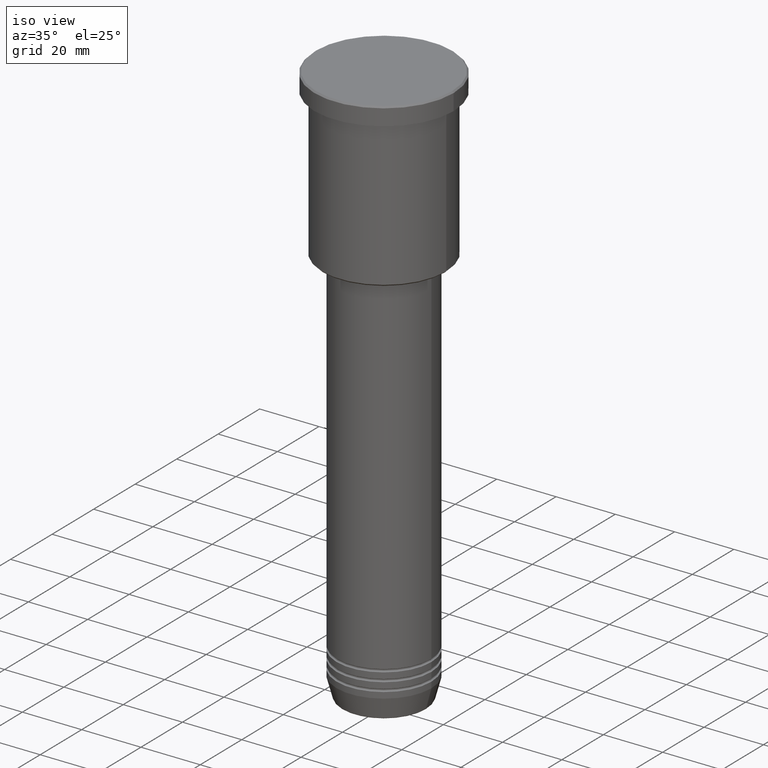
[diagram: clean part render]
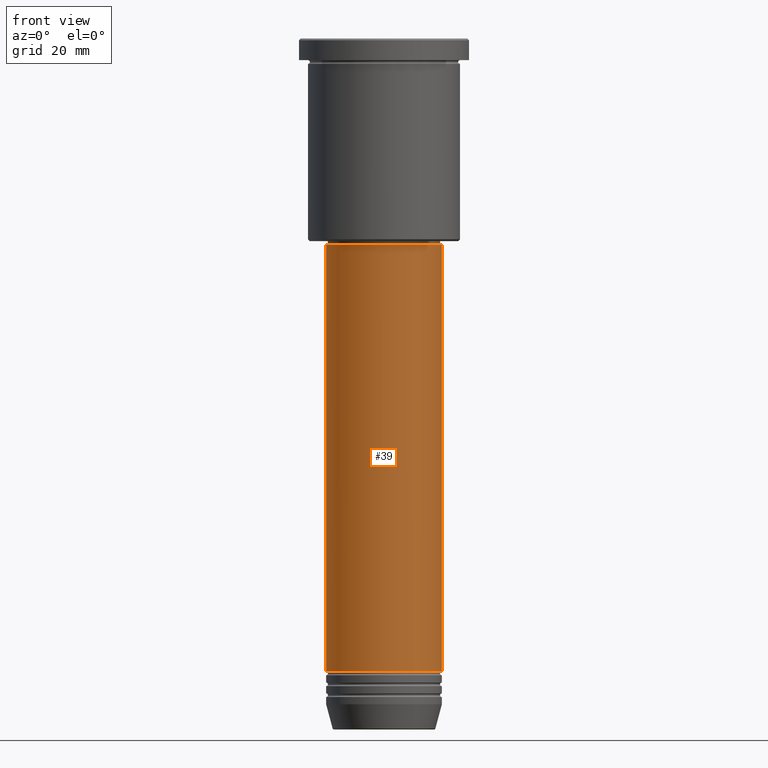
[diagram: tour spotlight — one face highlighted and labeled with its STEP entity id]
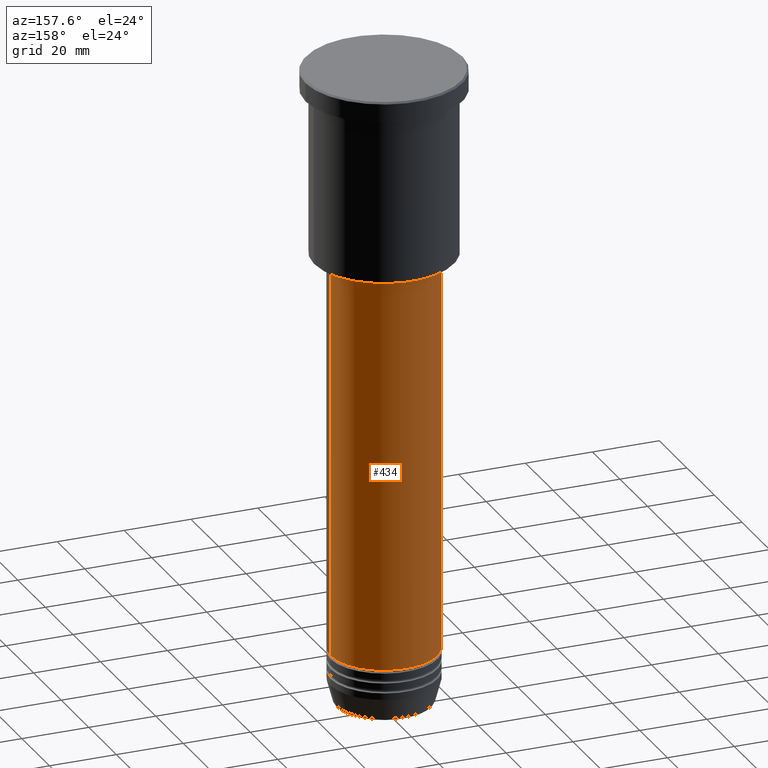
[diagram: tour spotlight — one face highlighted and labeled with its STEP entity id]
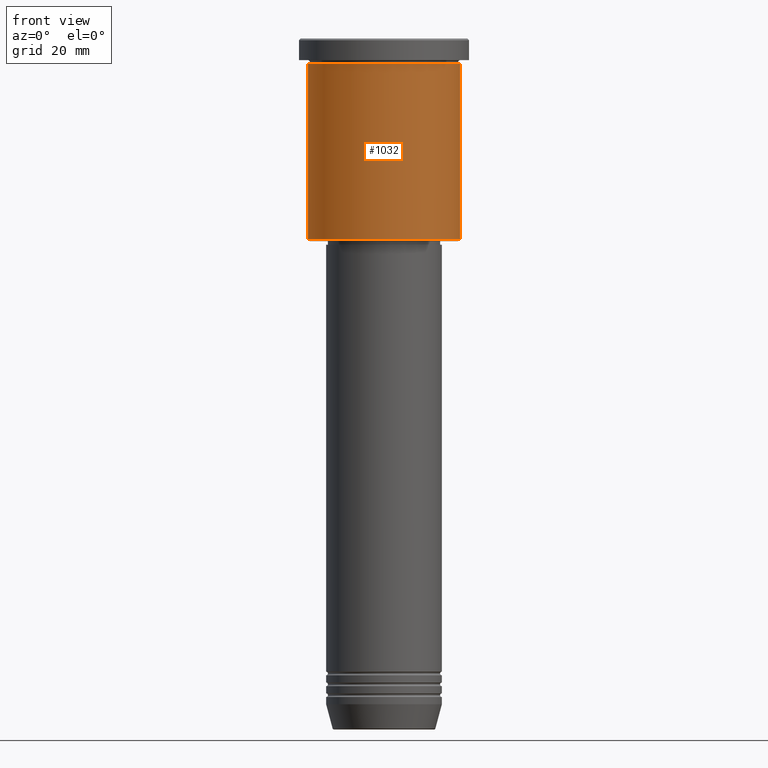
[diagram: tour spotlight — one face highlighted and labeled with its STEP entity id]
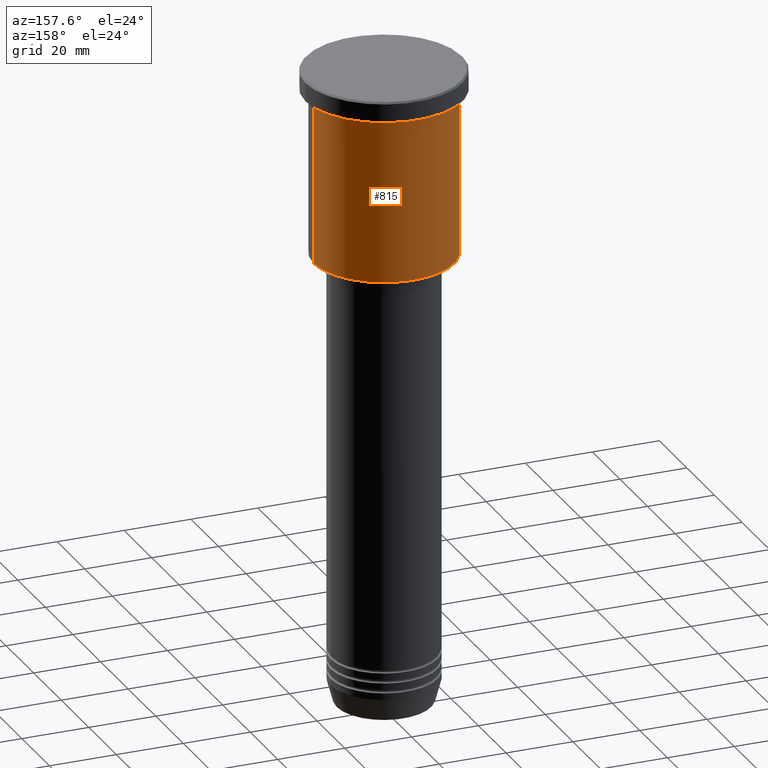
[diagram: tour spotlight — one face highlighted and labeled with its STEP entity id]
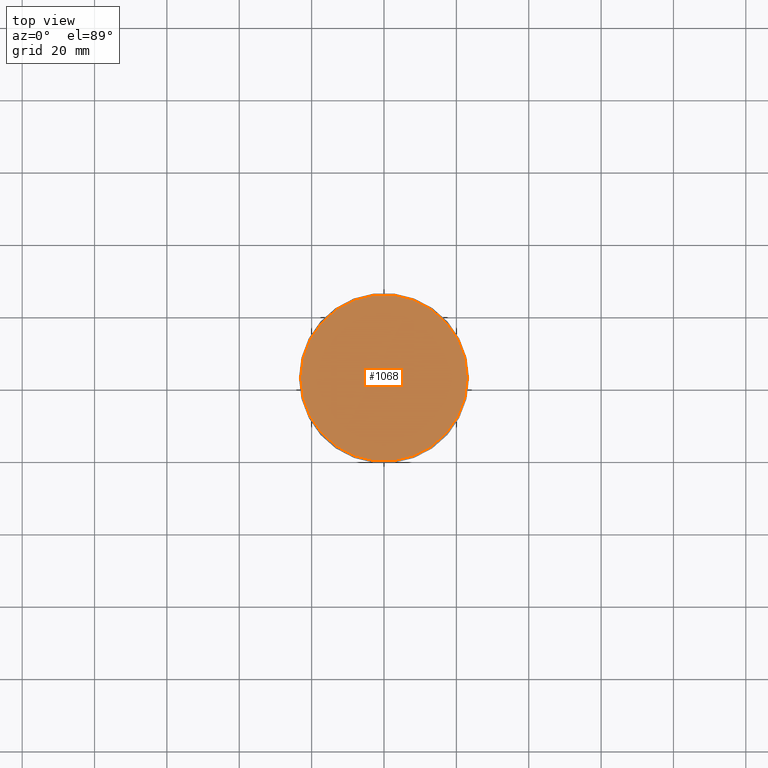
[diagram: tour spotlight — one face highlighted and labeled with its STEP entity id]
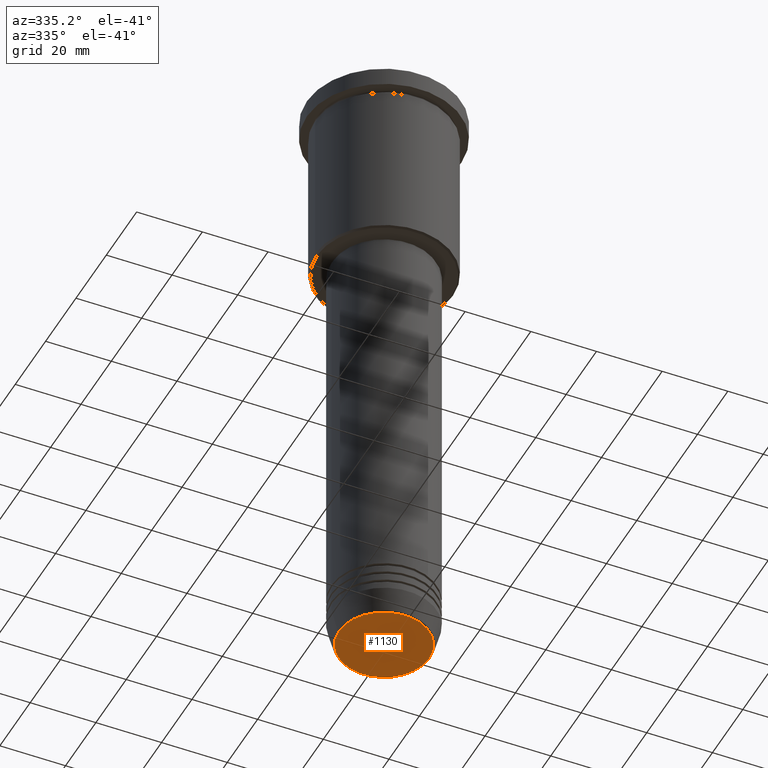
[diagram: tour spotlight — one face highlighted and labeled with its STEP entity id]
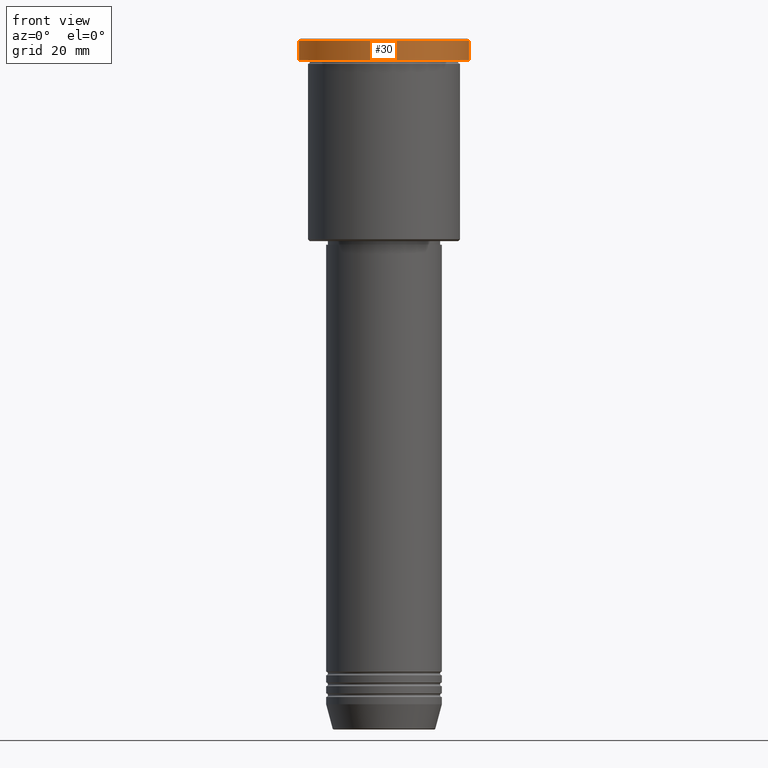
[diagram: tour spotlight — one face highlighted and labeled with its STEP entity id]
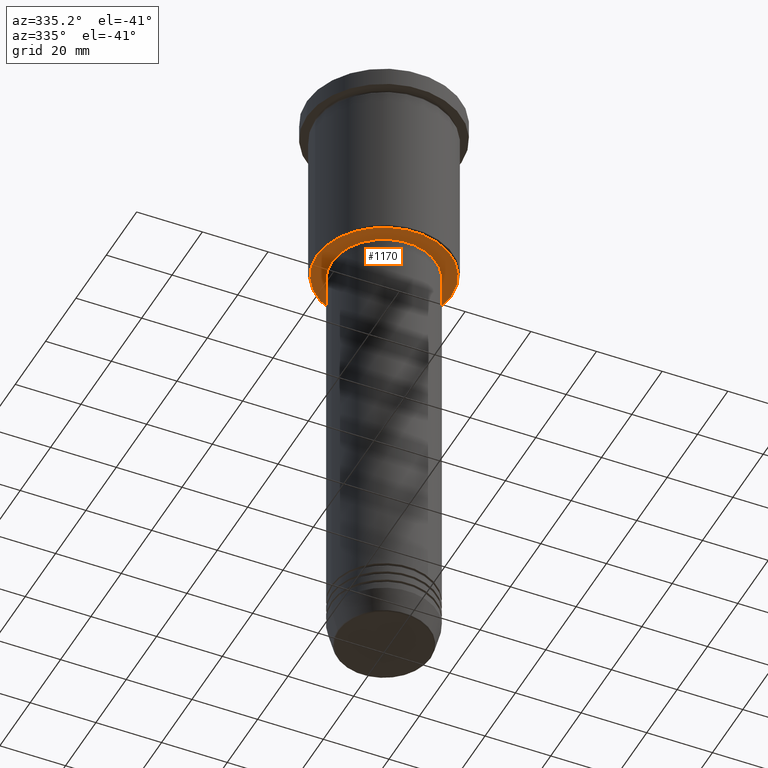
[diagram: tour spotlight — one face highlighted and labeled with its STEP entity id]
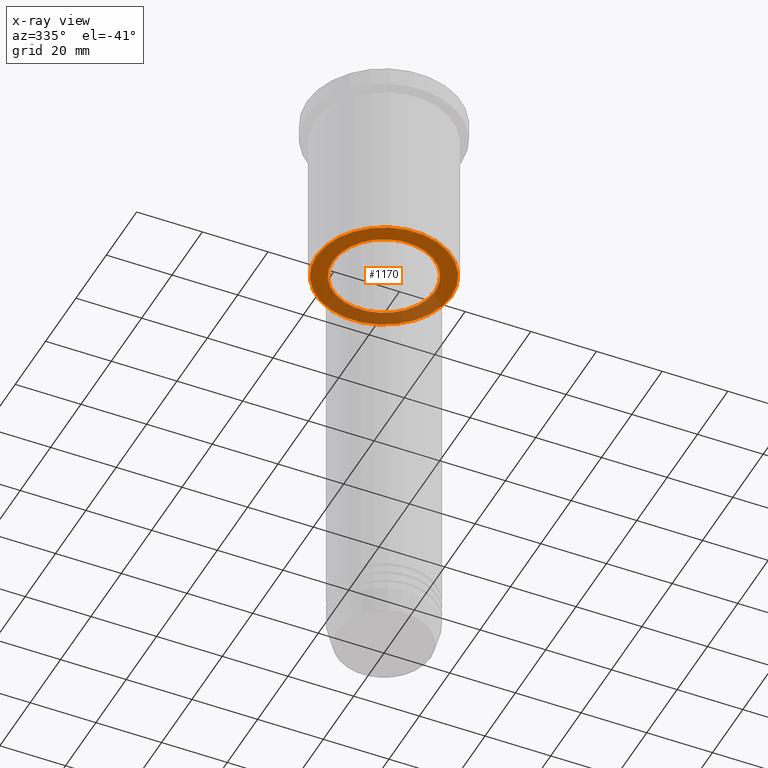
[diagram: x-ray of the same camera — body ghosted, this tour face saturated]
A machine part: a face-by-face anatomy tour. The part has 43 B-rep faces; the first image is the clean iso view, then the 8 largest visible faces are spotlighted one at a time (largest first), each with its STEP entity span.

Face 1 — front view, entity #39. In plain terms, the highlighted cylindrical surface (partial cylindrical patch) has radius 16 mm, axis along (-0, -0, 1).
Definition (entity closure, byte-faithful):
#39 = ADVANCED_FACE ( 'NONE', ( #838 ), #776, .T. ) ;
#57 = VECTOR ( 'NONE', #774, 1000.000000000000000 ) ;
#83 = VERTEX_POINT ( 'NONE', #371 ) ;
#88 = DIRECTION ( 'NONE',  ( 1.000000000000000000, 0.000000000000000000, 0.000000000000000000 ) ) ;
#122 = EDGE_CURVE ( 'NONE', #903, #820, #488, .T. ) ;
#129 = CARTESIAN_POINT ( 'NONE',  ( 0.000000000000000000, 0.000000000000000000, -175.0000000000000000 ) ) ;
#215 = ORIENTED_EDGE ( 'NONE', *, *, #1174, .F. ) ;
#284 = DIRECTION ( 'NONE',  ( 1.000000000000000000, 0.000000000000000000, 0.000000000000000000 ) ) ;
#371 = CARTESIAN_POINT ( 'NONE',  ( 16.00000000000000000, 0.000000000000000000, -57.00000000000001421 ) ) ;
#385 = VERTEX_POINT ( 'NONE', #463 ) ;
#394 = CARTESIAN_POINT ( 'NONE',  ( -16.00000000000000000, 1.959434878635765131E-15, 0.000000000000000000 ) ) ;
#456 = CARTESIAN_POINT ( 'NONE',  ( 16.00000000000000000, 0.000000000000000000, 0.000000000000000000 ) ) ;
#463 = CARTESIAN_POINT ( 'NONE',  ( -16.00000000000000000, 1.959434878635765131E-15, -57.00000000000001421 ) ) ;
#488 = CIRCLE ( 'NONE', #1124, 16.00000000000000000 ) ;
#494 = DIRECTION ( 'NONE',  ( -0.000000000000000000, -0.000000000000000000, 1.000000000000000000 ) ) ;
#563 = DIRECTION ( 'NONE',  ( -0.000000000000000000, -0.000000000000000000, 1.000000000000000000 ) ) ;
#568 = AXIS2_PLACEMENT_3D ( 'NONE', #847, #563, #284 ) ;
#595 = LINE ( 'NONE', #394, #57 ) ;
#666 = CARTESIAN_POINT ( 'NONE',  ( -16.00000000000000000, 1.959434878635765131E-15, -175.0000000000000000 ) ) ;
#672 = CIRCLE ( 'NONE', #950, 16.00000000000000000 ) ;
#696 = ORIENTED_EDGE ( 'NONE', *, *, #746, .F. ) ;
#709 = ORIENTED_EDGE ( 'NONE', *, *, #122, .T. ) ;
#746 = EDGE_CURVE ( 'NONE', #385, #83, #672, .T. ) ;
#774 = DIRECTION ( 'NONE',  ( -0.000000000000000000, -0.000000000000000000, 1.000000000000000000 ) ) ;
#776 = CYLINDRICAL_SURFACE ( 'NONE', #568, 16.00000000000000000 ) ;
#820 = VERTEX_POINT ( 'NONE', #1007 ) ;
#831 = ORIENTED_EDGE ( 'NONE', *, *, #835, .T. ) ;
#835 = EDGE_CURVE ( 'NONE', #820, #83, #984, .T. ) ;
#838 = FACE_OUTER_BOUND ( 'NONE', #876, .T. ) ;
#847 = CARTESIAN_POINT ( 'NONE',  ( 0.000000000000000000, 0.000000000000000000, 0.000000000000000000 ) ) ;
#876 = EDGE_LOOP ( 'NONE', ( #215, #709, #831, #696 ) ) ;
#903 = VERTEX_POINT ( 'NONE', #666 ) ;
#950 = AXIS2_PLACEMENT_3D ( 'NONE', #1083, #1097, #1103 ) ;
#984 = LINE ( 'NONE', #456, #1050 ) ;
#1007 = CARTESIAN_POINT ( 'NONE',  ( 16.00000000000000000, 0.000000000000000000, -175.0000000000000000 ) ) ;
#1050 = VECTOR ( 'NONE', #1091, 1000.000000000000000 ) ;
#1083 = CARTESIAN_POINT ( 'NONE',  ( 0.000000000000000000, 0.000000000000000000, -57.00000000000001421 ) ) ;
#1091 = DIRECTION ( 'NONE',  ( -0.000000000000000000, -0.000000000000000000, 1.000000000000000000 ) ) ;
#1097 = DIRECTION ( 'NONE',  ( -0.000000000000000000, -0.000000000000000000, 1.000000000000000000 ) ) ;
#1103 = DIRECTION ( 'NONE',  ( 1.000000000000000000, 0.000000000000000000, 0.000000000000000000 ) ) ;
#1124 = AXIS2_PLACEMENT_3D ( 'NONE', #129, #494, #88 ) ;
#1174 = EDGE_CURVE ( 'NONE', #903, #385, #595, .T. ) ;

Face 2 — auxiliary view, entity #434. In plain terms, the highlighted cylindrical surface (partial cylindrical patch) has radius 16 mm, axis along (-0, -0, 1).
Definition (entity closure, byte-faithful):
#57 = VECTOR ( 'NONE', #774, 1000.000000000000000 ) ;
#66 = CARTESIAN_POINT ( 'NONE',  ( 0.000000000000000000, 0.000000000000000000, -175.0000000000000000 ) ) ;
#83 = VERTEX_POINT ( 'NONE', #371 ) ;
#120 = ORIENTED_EDGE ( 'NONE', *, *, #306, .F. ) ;
#185 = EDGE_CURVE ( 'NONE', #820, #903, #506, .T. ) ;
#275 = CARTESIAN_POINT ( 'NONE',  ( 0.000000000000000000, 0.000000000000000000, 0.000000000000000000 ) ) ;
#306 = EDGE_CURVE ( 'NONE', #83, #385, #915, .T. ) ;
#332 = AXIS2_PLACEMENT_3D ( 'NONE', #66, #690, #593 ) ;
#363 = FACE_OUTER_BOUND ( 'NONE', #699, .T. ) ;
#371 = CARTESIAN_POINT ( 'NONE',  ( 16.00000000000000000, 0.000000000000000000, -57.00000000000001421 ) ) ;
#385 = VERTEX_POINT ( 'NONE', #463 ) ;
#394 = CARTESIAN_POINT ( 'NONE',  ( -16.00000000000000000, 1.959434878635765131E-15, 0.000000000000000000 ) ) ;
#428 = DIRECTION ( 'NONE',  ( 1.000000000000000000, 0.000000000000000000, 0.000000000000000000 ) ) ;
#434 = ADVANCED_FACE ( 'NONE', ( #363 ), #740, .T. ) ;
#456 = CARTESIAN_POINT ( 'NONE',  ( 16.00000000000000000, 0.000000000000000000, 0.000000000000000000 ) ) ;
#463 = CARTESIAN_POINT ( 'NONE',  ( -16.00000000000000000, 1.959434878635765131E-15, -57.00000000000001421 ) ) ;
#506 = CIRCLE ( 'NONE', #332, 16.00000000000000000 ) ;
#586 = ORIENTED_EDGE ( 'NONE', *, *, #185, .T. ) ;
#593 = DIRECTION ( 'NONE',  ( 1.000000000000000000, 0.000000000000000000, 0.000000000000000000 ) ) ;
#595 = LINE ( 'NONE', #394, #57 ) ;
#623 = DIRECTION ( 'NONE',  ( 1.000000000000000000, 0.000000000000000000, 0.000000000000000000 ) ) ;
#649 = DIRECTION ( 'NONE',  ( -0.000000000000000000, -0.000000000000000000, 1.000000000000000000 ) ) ;
#666 = CARTESIAN_POINT ( 'NONE',  ( -16.00000000000000000, 1.959434878635765131E-15, -175.0000000000000000 ) ) ;
#690 = DIRECTION ( 'NONE',  ( -0.000000000000000000, -0.000000000000000000, 1.000000000000000000 ) ) ;
#699 = EDGE_LOOP ( 'NONE', ( #586, #1051, #120, #1095 ) ) ;
#740 = CYLINDRICAL_SURFACE ( 'NONE', #764, 16.00000000000000000 ) ;
#764 = AXIS2_PLACEMENT_3D ( 'NONE', #275, #649, #623 ) ;
#774 = DIRECTION ( 'NONE',  ( -0.000000000000000000, -0.000000000000000000, 1.000000000000000000 ) ) ;
#781 = CARTESIAN_POINT ( 'NONE',  ( 0.000000000000000000, 0.000000000000000000, -57.00000000000001421 ) ) ;
#792 = DIRECTION ( 'NONE',  ( -0.000000000000000000, -0.000000000000000000, 1.000000000000000000 ) ) ;
#820 = VERTEX_POINT ( 'NONE', #1007 ) ;
#835 = EDGE_CURVE ( 'NONE', #820, #83, #984, .T. ) ;
#903 = VERTEX_POINT ( 'NONE', #666 ) ;
#915 = CIRCLE ( 'NONE', #1144, 16.00000000000000000 ) ;
#984 = LINE ( 'NONE', #456, #1050 ) ;
#1007 = CARTESIAN_POINT ( 'NONE',  ( 16.00000000000000000, 0.000000000000000000, -175.0000000000000000 ) ) ;
#1050 = VECTOR ( 'NONE', #1091, 1000.000000000000000 ) ;
#1051 = ORIENTED_EDGE ( 'NONE', *, *, #1174, .T. ) ;
#1091 = DIRECTION ( 'NONE',  ( -0.000000000000000000, -0.000000000000000000, 1.000000000000000000 ) ) ;
#1095 = ORIENTED_EDGE ( 'NONE', *, *, #835, .F. ) ;
#1144 = AXIS2_PLACEMENT_3D ( 'NONE', #781, #792, #428 ) ;
#1174 = EDGE_CURVE ( 'NONE', #903, #385, #595, .T. ) ;

Face 3 — front view, entity #1032. In plain terms, the highlighted cylindrical surface (partial cylindrical patch) has radius 21 mm, axis along (-0, -0, 1).
Definition (entity closure, byte-faithful):
#3 = AXIS2_PLACEMENT_3D ( 'NONE', #219, #46, #967 ) ;
#6 = LINE ( 'NONE', #359, #471 ) ;
#46 = DIRECTION ( 'NONE',  ( -0.000000000000000000, -0.000000000000000000, 1.000000000000000000 ) ) ;
#55 = VECTOR ( 'NONE', #1109, 1000.000000000000000 ) ;
#58 = VERTEX_POINT ( 'NONE', #465 ) ;
#73 = EDGE_LOOP ( 'NONE', ( #555, #362, #1044, #263 ) ) ;
#93 = DIRECTION ( 'NONE',  ( -0.000000000000000000, -0.000000000000000000, 1.000000000000000000 ) ) ;
#95 = DIRECTION ( 'NONE',  ( -0.000000000000000000, -0.000000000000000000, 1.000000000000000000 ) ) ;
#138 = EDGE_CURVE ( 'NONE', #58, #317, #6, .T. ) ;
#173 = CARTESIAN_POINT ( 'NONE',  ( 21.00000000000000000, 0.000000000000000000, -6.999999999999994671 ) ) ;
#189 = FACE_OUTER_BOUND ( 'NONE', #73, .T. ) ;
#207 = VERTEX_POINT ( 'NONE', #957 ) ;
#219 = CARTESIAN_POINT ( 'NONE',  ( 0.000000000000000000, 0.000000000000000000, -6.999999999999994671 ) ) ;
#233 = CARTESIAN_POINT ( 'NONE',  ( -21.00000000000000000, 2.571758278209441661E-15, -55.50000000000002132 ) ) ;
#263 = ORIENTED_EDGE ( 'NONE', *, *, #720, .F. ) ;
#291 = LINE ( 'NONE', #864, #55 ) ;
#308 = CARTESIAN_POINT ( 'NONE',  ( 0.000000000000000000, 0.000000000000000000, 0.000000000000000000 ) ) ;
#317 = VERTEX_POINT ( 'NONE', #173 ) ;
#359 = CARTESIAN_POINT ( 'NONE',  ( 21.00000000000000000, 0.000000000000000000, 0.000000000000000000 ) ) ;
#362 = ORIENTED_EDGE ( 'NONE', *, *, #366, .T. ) ;
#366 = EDGE_CURVE ( 'NONE', #730, #58, #897, .T. ) ;
#370 = AXIS2_PLACEMENT_3D ( 'NONE', #1179, #93, #733 ) ;
#414 = CYLINDRICAL_SURFACE ( 'NONE', #673, 21.00000000000000000 ) ;
#465 = CARTESIAN_POINT ( 'NONE',  ( 21.00000000000000000, 0.000000000000000000, -55.50000000000002132 ) ) ;
#471 = VECTOR ( 'NONE', #95, 1000.000000000000000 ) ;
#547 = EDGE_CURVE ( 'NONE', #730, #207, #291, .T. ) ;
#555 = ORIENTED_EDGE ( 'NONE', *, *, #547, .F. ) ;
#673 = AXIS2_PLACEMENT_3D ( 'NONE', #308, #799, #778 ) ;
#720 = EDGE_CURVE ( 'NONE', #207, #317, #846, .T. ) ;
#730 = VERTEX_POINT ( 'NONE', #233 ) ;
#733 = DIRECTION ( 'NONE',  ( -1.000000000000000000, 0.000000000000000000, 0.000000000000000000 ) ) ;
#778 = DIRECTION ( 'NONE',  ( 1.000000000000000000, 0.000000000000000000, 0.000000000000000000 ) ) ;
#799 = DIRECTION ( 'NONE',  ( -0.000000000000000000, -0.000000000000000000, 1.000000000000000000 ) ) ;
#846 = CIRCLE ( 'NONE', #3, 21.00000000000000000 ) ;
#864 = CARTESIAN_POINT ( 'NONE',  ( -21.00000000000000000, 2.571758278209441661E-15, 0.000000000000000000 ) ) ;
#897 = CIRCLE ( 'NONE', #370, 21.00000000000000000 ) ;
#957 = CARTESIAN_POINT ( 'NONE',  ( -21.00000000000000000, 2.571758278209441661E-15, -6.999999999999994671 ) ) ;
#967 = DIRECTION ( 'NONE',  ( 1.000000000000000000, 0.000000000000000000, 0.000000000000000000 ) ) ;
#1032 = ADVANCED_FACE ( 'NONE', ( #189 ), #414, .T. ) ;
#1044 = ORIENTED_EDGE ( 'NONE', *, *, #138, .T. ) ;
#1109 = DIRECTION ( 'NONE',  ( -0.000000000000000000, -0.000000000000000000, 1.000000000000000000 ) ) ;
#1179 = CARTESIAN_POINT ( 'NONE',  ( 0.000000000000000000, 0.000000000000000000, -55.50000000000002132 ) ) ;

Face 4 — auxiliary view, entity #815. In plain terms, the highlighted cylindrical surface (partial cylindrical patch) has radius 21 mm, axis along (-0, -0, 1).
Definition (entity closure, byte-faithful):
#6 = LINE ( 'NONE', #359, #471 ) ;
#16 = CIRCLE ( 'NONE', #160, 21.00000000000000000 ) ;
#55 = VECTOR ( 'NONE', #1109, 1000.000000000000000 ) ;
#58 = VERTEX_POINT ( 'NONE', #465 ) ;
#80 = DIRECTION ( 'NONE',  ( 1.000000000000000000, 0.000000000000000000, 0.000000000000000000 ) ) ;
#95 = DIRECTION ( 'NONE',  ( -0.000000000000000000, -0.000000000000000000, 1.000000000000000000 ) ) ;
#138 = EDGE_CURVE ( 'NONE', #58, #317, #6, .T. ) ;
#157 = EDGE_CURVE ( 'NONE', #317, #207, #935, .T. ) ;
#160 = AXIS2_PLACEMENT_3D ( 'NONE', #511, #420, #319 ) ;
#173 = CARTESIAN_POINT ( 'NONE',  ( 21.00000000000000000, 0.000000000000000000, -6.999999999999994671 ) ) ;
#177 = CARTESIAN_POINT ( 'NONE',  ( 0.000000000000000000, 0.000000000000000000, 0.000000000000000000 ) ) ;
#207 = VERTEX_POINT ( 'NONE', #957 ) ;
#213 = EDGE_CURVE ( 'NONE', #58, #730, #16, .T. ) ;
#233 = CARTESIAN_POINT ( 'NONE',  ( -21.00000000000000000, 2.571758278209441661E-15, -55.50000000000002132 ) ) ;
#291 = LINE ( 'NONE', #864, #55 ) ;
#314 = DIRECTION ( 'NONE',  ( -0.000000000000000000, -0.000000000000000000, 1.000000000000000000 ) ) ;
#317 = VERTEX_POINT ( 'NONE', #173 ) ;
#319 = DIRECTION ( 'NONE',  ( -1.000000000000000000, 0.000000000000000000, 0.000000000000000000 ) ) ;
#356 = CYLINDRICAL_SURFACE ( 'NONE', #788, 21.00000000000000000 ) ;
#359 = CARTESIAN_POINT ( 'NONE',  ( 21.00000000000000000, 0.000000000000000000, 0.000000000000000000 ) ) ;
#416 = DIRECTION ( 'NONE',  ( 1.000000000000000000, 0.000000000000000000, 0.000000000000000000 ) ) ;
#420 = DIRECTION ( 'NONE',  ( -0.000000000000000000, -0.000000000000000000, 1.000000000000000000 ) ) ;
#465 = CARTESIAN_POINT ( 'NONE',  ( 21.00000000000000000, 0.000000000000000000, -55.50000000000002132 ) ) ;
#471 = VECTOR ( 'NONE', #95, 1000.000000000000000 ) ;
#511 = CARTESIAN_POINT ( 'NONE',  ( 0.000000000000000000, 0.000000000000000000, -55.50000000000002132 ) ) ;
#518 = ORIENTED_EDGE ( 'NONE', *, *, #138, .F. ) ;
#534 = DIRECTION ( 'NONE',  ( -0.000000000000000000, -0.000000000000000000, 1.000000000000000000 ) ) ;
#547 = EDGE_CURVE ( 'NONE', #730, #207, #291, .T. ) ;
#641 = FACE_OUTER_BOUND ( 'NONE', #715, .T. ) ;
#715 = EDGE_LOOP ( 'NONE', ( #1139, #1087, #861, #518 ) ) ;
#730 = VERTEX_POINT ( 'NONE', #233 ) ;
#784 = AXIS2_PLACEMENT_3D ( 'NONE', #1059, #314, #416 ) ;
#788 = AXIS2_PLACEMENT_3D ( 'NONE', #177, #534, #80 ) ;
#815 = ADVANCED_FACE ( 'NONE', ( #641 ), #356, .T. ) ;
#861 = ORIENTED_EDGE ( 'NONE', *, *, #157, .F. ) ;
#864 = CARTESIAN_POINT ( 'NONE',  ( -21.00000000000000000, 2.571758278209441661E-15, 0.000000000000000000 ) ) ;
#935 = CIRCLE ( 'NONE', #784, 21.00000000000000000 ) ;
#957 = CARTESIAN_POINT ( 'NONE',  ( -21.00000000000000000, 2.571758278209441661E-15, -6.999999999999994671 ) ) ;
#1059 = CARTESIAN_POINT ( 'NONE',  ( 0.000000000000000000, 0.000000000000000000, -6.999999999999994671 ) ) ;
#1087 = ORIENTED_EDGE ( 'NONE', *, *, #547, .T. ) ;
#1109 = DIRECTION ( 'NONE',  ( -0.000000000000000000, -0.000000000000000000, 1.000000000000000000 ) ) ;
#1139 = ORIENTED_EDGE ( 'NONE', *, *, #213, .T. ) ;

Face 5 — top view, entity #1068. In plain terms, the highlighted planar face has unit normal (0, -0, 1).
Definition (entity closure, byte-faithful):
#44 = DIRECTION ( 'NONE',  ( 0.000000000000000000, -0.000000000000000000, 1.000000000000000000 ) ) ;
#53 = DIRECTION ( 'NONE',  ( -0.000000000000000000, -0.000000000000000000, 1.000000000000000000 ) ) ;
#178 = EDGE_CURVE ( 'NONE', #1172, #685, #181, .T. ) ;
#181 = CIRCLE ( 'NONE', #350, 22.99999999999996803 ) ;
#225 = EDGE_CURVE ( 'NONE', #685, #1172, #1089, .T. ) ;
#232 = PLANE ( 'NONE',  #790 ) ;
#299 = EDGE_LOOP ( 'NONE', ( #560, #1043 ) ) ;
#321 = DIRECTION ( 'NONE',  ( 1.000000000000000000, 0.000000000000000000, 0.000000000000000000 ) ) ;
#350 = AXIS2_PLACEMENT_3D ( 'NONE', #969, #869, #602 ) ;
#515 = CARTESIAN_POINT ( 'NONE',  ( 22.99999999999996803, 2.847303808017594561E-15, 0.000000000000000000 ) ) ;
#560 = ORIENTED_EDGE ( 'NONE', *, *, #178, .T. ) ;
#602 = DIRECTION ( 'NONE',  ( 1.000000000000000000, 0.000000000000000000, 0.000000000000000000 ) ) ;
#616 = CARTESIAN_POINT ( 'NONE',  ( 0.000000000000000000, 0.000000000000000000, 0.000000000000000000 ) ) ;
#685 = VERTEX_POINT ( 'NONE', #515 ) ;
#724 = AXIS2_PLACEMENT_3D ( 'NONE', #616, #53, #982 ) ;
#790 = AXIS2_PLACEMENT_3D ( 'NONE', #1067, #44, #321 ) ;
#862 = CARTESIAN_POINT ( 'NONE',  ( -22.99999999999996803, 0.000000000000000000, 0.000000000000000000 ) ) ;
#869 = DIRECTION ( 'NONE',  ( -0.000000000000000000, -0.000000000000000000, 1.000000000000000000 ) ) ;
#969 = CARTESIAN_POINT ( 'NONE',  ( 0.000000000000000000, 0.000000000000000000, 0.000000000000000000 ) ) ;
#982 = DIRECTION ( 'NONE',  ( 1.000000000000000000, 0.000000000000000000, 0.000000000000000000 ) ) ;
#1043 = ORIENTED_EDGE ( 'NONE', *, *, #225, .T. ) ;
#1067 = CARTESIAN_POINT ( 'NONE',  ( 0.000000000000000000, 0.000000000000000000, 0.000000000000000000 ) ) ;
#1068 = ADVANCED_FACE ( 'NONE', ( #1154 ), #232, .T. ) ;
#1089 = CIRCLE ( 'NONE', #724, 22.99999999999996803 ) ;
#1154 = FACE_OUTER_BOUND ( 'NONE', #299, .T. ) ;
#1172 = VERTEX_POINT ( 'NONE', #862 ) ;

Face 6 — auxiliary view, entity #1130. In plain terms, the highlighted planar face has unit normal (0, -0, 1).
Definition (entity closure, byte-faithful):
#67 = VERTEX_POINT ( 'NONE', #305 ) ;
#148 = AXIS2_PLACEMENT_3D ( 'NONE', #399, #405, #496 ) ;
#208 = ORIENTED_EDGE ( 'NONE', *, *, #857, .T. ) ;
#245 = FACE_OUTER_BOUND ( 'NONE', #766, .T. ) ;
#262 = CARTESIAN_POINT ( 'NONE',  ( 0.000000000000000000, 0.000000000000000000, -191.0000000000000000 ) ) ;
#280 = AXIS2_PLACEMENT_3D ( 'NONE', #905, #738, #446 ) ;
#294 = CARTESIAN_POINT ( 'NONE',  ( 13.74069215899266538, 0.000000000000000000, -191.0000000000000000 ) ) ;
#305 = CARTESIAN_POINT ( 'NONE',  ( -13.74069215899266538, 1.712322416342416577E-15, -191.0000000000000000 ) ) ;
#328 = PLANE ( 'NONE',  #148 ) ;
#337 = DIRECTION ( 'NONE',  ( 0.000000000000000000, 0.000000000000000000, -1.000000000000000000 ) ) ;
#399 = CARTESIAN_POINT ( 'NONE',  ( 0.000000000000000000, 0.000000000000000000, -191.0000000000000000 ) ) ;
#405 = DIRECTION ( 'NONE',  ( 0.000000000000000000, -0.000000000000000000, 1.000000000000000000 ) ) ;
#446 = DIRECTION ( 'NONE',  ( 1.000000000000000000, 0.000000000000000000, 0.000000000000000000 ) ) ;
#466 = VERTEX_POINT ( 'NONE', #294 ) ;
#496 = DIRECTION ( 'NONE',  ( 1.000000000000000000, 0.000000000000000000, 0.000000000000000000 ) ) ;
#525 = DIRECTION ( 'NONE',  ( 1.000000000000000000, 0.000000000000000000, 0.000000000000000000 ) ) ;
#728 = AXIS2_PLACEMENT_3D ( 'NONE', #262, #337, #525 ) ;
#738 = DIRECTION ( 'NONE',  ( 0.000000000000000000, 0.000000000000000000, -1.000000000000000000 ) ) ;
#743 = EDGE_CURVE ( 'NONE', #67, #466, #1069, .T. ) ;
#766 = EDGE_LOOP ( 'NONE', ( #208, #849 ) ) ;
#849 = ORIENTED_EDGE ( 'NONE', *, *, #743, .T. ) ;
#857 = EDGE_CURVE ( 'NONE', #466, #67, #1167, .T. ) ;
#905 = CARTESIAN_POINT ( 'NONE',  ( 0.000000000000000000, 0.000000000000000000, -191.0000000000000000 ) ) ;
#1069 = CIRCLE ( 'NONE', #280, 13.74069215899266538 ) ;
#1130 = ADVANCED_FACE ( 'NONE', ( #245 ), #328, .F. ) ;
#1167 = CIRCLE ( 'NONE', #728, 13.74069215899266538 ) ;

Face 7 — front view, entity #30. In plain terms, the highlighted cylindrical surface (partial cylindrical patch) has radius 23.5 mm, axis along (-0, -0, 1).
Definition (entity closure, byte-faithful):
#12 = FACE_OUTER_BOUND ( 'NONE', #454, .T. ) ;
#30 = ADVANCED_FACE ( 'NONE', ( #12 ), #193, .T. ) ;
#84 = ORIENTED_EDGE ( 'NONE', *, *, #596, .T. ) ;
#100 = DIRECTION ( 'NONE',  ( -0.000000000000000000, -0.000000000000000000, 1.000000000000000000 ) ) ;
#110 = CARTESIAN_POINT ( 'NONE',  ( -23.50000000000000000, 2.877919977996280320E-15, -0.5000000000000281997 ) ) ;
#123 = ORIENTED_EDGE ( 'NONE', *, *, #298, .F. ) ;
#158 = ORIENTED_EDGE ( 'NONE', *, *, #368, .T. ) ;
#171 = CARTESIAN_POINT ( 'NONE',  ( 23.50000000000000000, 0.000000000000000000, -0.5000000000000281997 ) ) ;
#193 = CYLINDRICAL_SURFACE ( 'NONE', #783, 23.50000000000000000 ) ;
#197 = DIRECTION ( 'NONE',  ( -0.000000000000000000, -0.000000000000000000, 1.000000000000000000 ) ) ;
#229 = LINE ( 'NONE', #890, #989 ) ;
#240 = CARTESIAN_POINT ( 'NONE',  ( 0.000000000000000000, 0.000000000000000000, -0.5000000000000281997 ) ) ;
#241 = AXIS2_PLACEMENT_3D ( 'NONE', #240, #977, #894 ) ;
#270 = DIRECTION ( 'NONE',  ( -0.000000000000000000, -0.000000000000000000, 1.000000000000000000 ) ) ;
#276 = EDGE_CURVE ( 'NONE', #856, #924, #606, .T. ) ;
#298 = EDGE_CURVE ( 'NONE', #522, #924, #229, .T. ) ;
#368 = EDGE_CURVE ( 'NONE', #522, #413, #1145, .T. ) ;
#413 = VERTEX_POINT ( 'NONE', #726 ) ;
#454 = EDGE_LOOP ( 'NONE', ( #123, #158, #84, #1009 ) ) ;
#522 = VERTEX_POINT ( 'NONE', #842 ) ;
#548 = VECTOR ( 'NONE', #197, 1000.000000000000000 ) ;
#596 = EDGE_CURVE ( 'NONE', #413, #856, #1024, .T. ) ;
#598 = DIRECTION ( 'NONE',  ( -0.000000000000000000, -0.000000000000000000, 1.000000000000000000 ) ) ;
#606 = CIRCLE ( 'NONE', #241, 23.50000000000000000 ) ;
#653 = AXIS2_PLACEMENT_3D ( 'NONE', #1094, #270, #1104 ) ;
#662 = CARTESIAN_POINT ( 'NONE',  ( 0.000000000000000000, 0.000000000000000000, 0.000000000000000000 ) ) ;
#726 = CARTESIAN_POINT ( 'NONE',  ( 23.50000000000000000, 0.000000000000000000, -5.999999999999994671 ) ) ;
#783 = AXIS2_PLACEMENT_3D ( 'NONE', #662, #100, #1014 ) ;
#842 = CARTESIAN_POINT ( 'NONE',  ( -23.50000000000000000, 2.877919977996280320E-15, -5.999999999999994671 ) ) ;
#856 = VERTEX_POINT ( 'NONE', #171 ) ;
#890 = CARTESIAN_POINT ( 'NONE',  ( -23.50000000000000000, 2.877919977996280320E-15, 0.000000000000000000 ) ) ;
#894 = DIRECTION ( 'NONE',  ( 1.000000000000000000, 0.000000000000000000, 0.000000000000000000 ) ) ;
#924 = VERTEX_POINT ( 'NONE', #110 ) ;
#977 = DIRECTION ( 'NONE',  ( 0.000000000000000000, 0.000000000000000000, -1.000000000000000000 ) ) ;
#989 = VECTOR ( 'NONE', #598, 1000.000000000000000 ) ;
#1009 = ORIENTED_EDGE ( 'NONE', *, *, #276, .T. ) ;
#1014 = DIRECTION ( 'NONE',  ( 1.000000000000000000, 0.000000000000000000, 0.000000000000000000 ) ) ;
#1024 = LINE ( 'NONE', #1118, #548 ) ;
#1094 = CARTESIAN_POINT ( 'NONE',  ( 0.000000000000000000, 0.000000000000000000, -5.999999999999994671 ) ) ;
#1104 = DIRECTION ( 'NONE',  ( 1.000000000000000000, 0.000000000000000000, 0.000000000000000000 ) ) ;
#1118 = CARTESIAN_POINT ( 'NONE',  ( 23.50000000000000000, 0.000000000000000000, 0.000000000000000000 ) ) ;
#1145 = CIRCLE ( 'NONE', #653, 23.50000000000000000 ) ;

Face 8 — auxiliary view, entity #1170. An x-ray twin of the same camera follows (body ghosted, this face saturated) — the face is partly hidden behind the body. In plain terms, the highlighted planar face has unit normal (0, 0, -1).
Definition (entity closure, byte-faithful):
#14 = CARTESIAN_POINT ( 'NONE',  ( 20.50000000000001776, 0.000000000000000000, -56.00000000000000711 ) ) ;
#23 = DIRECTION ( 'NONE',  ( -1.000000000000000000, 0.000000000000000000, 0.000000000000000000 ) ) ;
#38 = DIRECTION ( 'NONE',  ( 0.000000000000000000, 0.000000000000000000, -1.000000000000000000 ) ) ;
#42 = DIRECTION ( 'NONE',  ( 0.000000000000000000, 0.000000000000000000, -1.000000000000000000 ) ) ;
#54 = CIRCLE ( 'NONE', #309, 20.50000000000001776 ) ;
#64 = FACE_OUTER_BOUND ( 'NONE', #327, .T. ) ;
#74 = EDGE_CURVE ( 'NONE', #965, #191, #54, .T. ) ;
#75 = CIRCLE ( 'NONE', #131, 15.50000000000000000 ) ;
#108 = EDGE_CURVE ( 'NONE', #191, #965, #763, .T. ) ;
#131 = AXIS2_PLACEMENT_3D ( 'NONE', #956, #318, #1070 ) ;
#137 = CARTESIAN_POINT ( 'NONE',  ( 0.000000000000000000, 21.00000000000000000, -56.00000000000000711 ) ) ;
#190 = CARTESIAN_POINT ( 'NONE',  ( 0.000000000000000000, 0.000000000000000000, -56.00000000000000711 ) ) ;
#191 = VERTEX_POINT ( 'NONE', #1076 ) ;
#212 = DIRECTION ( 'NONE',  ( -0.000000000000000000, -0.000000000000000000, 1.000000000000000000 ) ) ;
#249 = VERTEX_POINT ( 'NONE', #698 ) ;
#309 = AXIS2_PLACEMENT_3D ( 'NONE', #472, #460, #683 ) ;
#318 = DIRECTION ( 'NONE',  ( -0.000000000000000000, -0.000000000000000000, 1.000000000000000000 ) ) ;
#327 = EDGE_LOOP ( 'NONE', ( #837, #1021 ) ) ;
#418 = PLANE ( 'NONE',  #1127 ) ;
#432 = EDGE_LOOP ( 'NONE', ( #785, #841 ) ) ;
#460 = DIRECTION ( 'NONE',  ( 0.000000000000000000, 0.000000000000000000, -1.000000000000000000 ) ) ;
#472 = CARTESIAN_POINT ( 'NONE',  ( 0.000000000000000000, 0.000000000000000000, -56.00000000000000711 ) ) ;
#484 = DIRECTION ( 'NONE',  ( 1.000000000000000000, 0.000000000000000000, 0.000000000000000000 ) ) ;
#485 = AXIS2_PLACEMENT_3D ( 'NONE', #926, #42, #23 ) ;
#524 = EDGE_CURVE ( 'NONE', #249, #647, #1090, .T. ) ;
#647 = VERTEX_POINT ( 'NONE', #889 ) ;
#683 = DIRECTION ( 'NONE',  ( -1.000000000000000000, 0.000000000000000000, 0.000000000000000000 ) ) ;
#698 = CARTESIAN_POINT ( 'NONE',  ( -15.50000000000000000, 1.898202538678397557E-15, -56.00000000000000711 ) ) ;
#705 = EDGE_CURVE ( 'NONE', #647, #249, #75, .T. ) ;
#747 = AXIS2_PLACEMENT_3D ( 'NONE', #190, #212, #484 ) ;
#763 = CIRCLE ( 'NONE', #485, 20.50000000000001776 ) ;
#785 = ORIENTED_EDGE ( 'NONE', *, *, #705, .T. ) ;
#837 = ORIENTED_EDGE ( 'NONE', *, *, #74, .T. ) ;
#841 = ORIENTED_EDGE ( 'NONE', *, *, #524, .T. ) ;
#881 = FACE_BOUND ( 'NONE', #432, .T. ) ;
#889 = CARTESIAN_POINT ( 'NONE',  ( 15.50000000000000000, 0.000000000000000000, -56.00000000000000711 ) ) ;
#926 = CARTESIAN_POINT ( 'NONE',  ( 0.000000000000000000, 0.000000000000000000, -56.00000000000000711 ) ) ;
#956 = CARTESIAN_POINT ( 'NONE',  ( 0.000000000000000000, 0.000000000000000000, -56.00000000000000711 ) ) ;
#960 = DIRECTION ( 'NONE',  ( -1.000000000000000000, 0.000000000000000000, -0.000000000000000000 ) ) ;
#965 = VERTEX_POINT ( 'NONE', #14 ) ;
#1021 = ORIENTED_EDGE ( 'NONE', *, *, #108, .T. ) ;
#1070 = DIRECTION ( 'NONE',  ( 1.000000000000000000, 0.000000000000000000, 0.000000000000000000 ) ) ;
#1076 = CARTESIAN_POINT ( 'NONE',  ( -20.50000000000001776, 2.541142108230759057E-15, -56.00000000000000711 ) ) ;
#1090 = CIRCLE ( 'NONE', #747, 15.50000000000000000 ) ;
#1127 = AXIS2_PLACEMENT_3D ( 'NONE', #137, #38, #960 ) ;
#1170 = ADVANCED_FACE ( 'NONE', ( #64, #881 ), #418, .T. ) ;